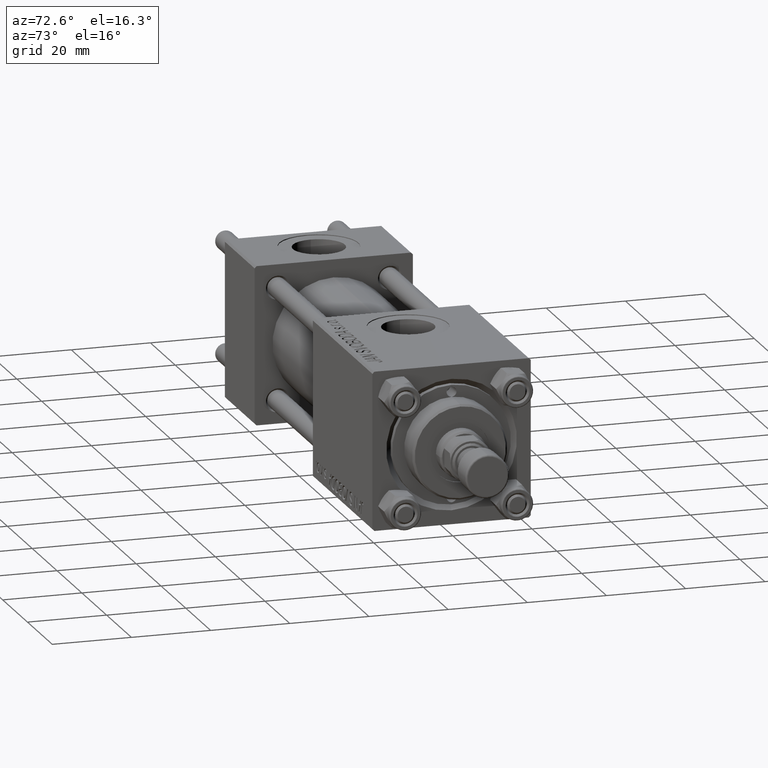
[diagram: clean part render]
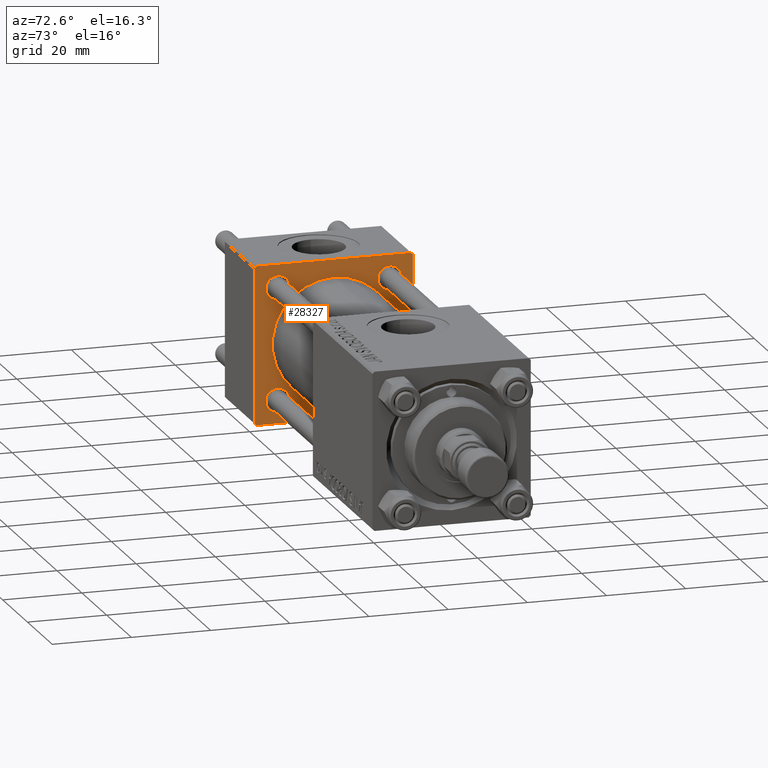
[diagram: same view with one face highlighted and labeled with its STEP entity id]
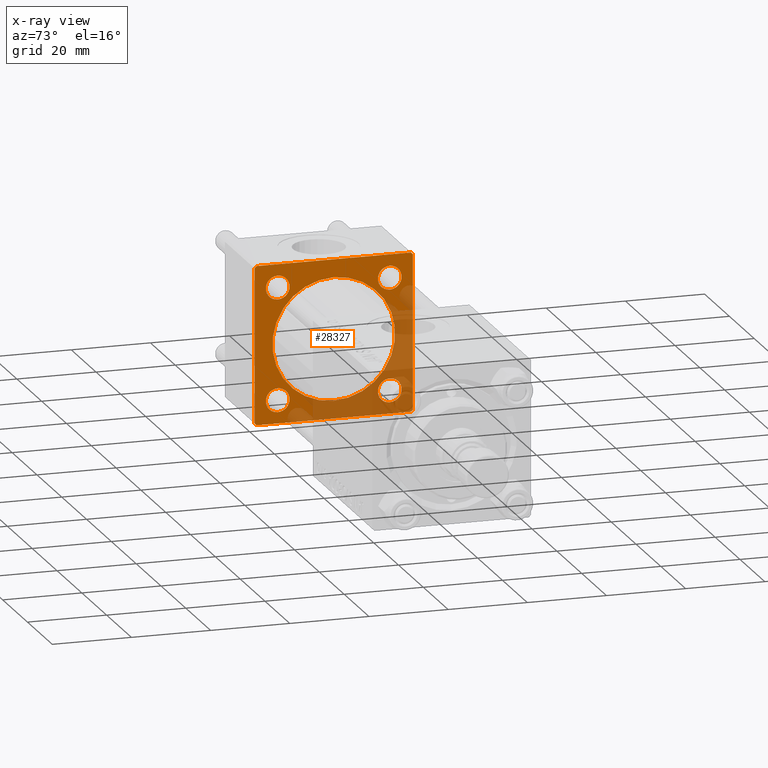
[diagram: x-ray of the same camera — body ghosted, the highlighted face saturated]
A machine part, auxiliary view. The second image highlights one B-rep face of the part: STEP entity #28327.
The next image is the same camera in x-ray: the body ghosted, the highlighted face saturated — about 37% of this face is hidden behind the body in this view.
In plain terms, the highlighted planar face has unit normal (-1, 0, 0).
Its self-contained STEP definition (entity closure, byte-faithful):
#502 = ORIENTED_EDGE ( 'NONE', *, *, #19121, .T. ) ;
#857 = AXIS2_PLACEMENT_3D ( 'NONE', #31133, #23736, #34715 ) ;
#1470 = EDGE_LOOP ( 'NONE', ( #45643, #43378 ) ) ;
#1953 = DIRECTION ( 'NONE',  ( 0.000000000000000000, 0.000000000000000000, 1.000000000000000000 ) ) ;
#2620 = CARTESIAN_POINT ( 'NONE',  ( 24.00000000000000000, 20.00000000000000000, -19.50000000000002132 ) ) ;
#2729 = AXIS2_PLACEMENT_3D ( 'NONE', #49219, #3333, #29299 ) ;
#3080 = CARTESIAN_POINT ( 'NONE',  ( 24.00000000000000000, 14.14999999999999858, 14.15000000000000036 ) ) ;
#3100 = VERTEX_POINT ( 'NONE', #43044 ) ;
#3333 = DIRECTION ( 'NONE',  ( -1.000000000000000000, -0.000000000000000000, -0.000000000000000000 ) ) ;
#3991 = CARTESIAN_POINT ( 'NONE',  ( 24.00000000000000000, -20.00000000000000355, 19.49999999999998224 ) ) ;
#4028 = EDGE_CURVE ( 'NONE', #40563, #18479, #42362, .T. ) ;
#4065 = DIRECTION ( 'NONE',  ( -1.000000000000000000, -0.000000000000000000, -0.000000000000000000 ) ) ;
#4087 = VERTEX_POINT ( 'NONE', #12541 ) ;
#4515 = VECTOR ( 'NONE', #27469, 1000.000000000000000 ) ;
#5428 = VERTEX_POINT ( 'NONE', #28054 ) ;
#5526 = DIRECTION ( 'NONE',  ( 1.000000000000000000, 0.000000000000000000, 0.000000000000000000 ) ) ;
#5580 = EDGE_CURVE ( 'NONE', #18479, #40563, #30181, .T. ) ;
#5653 = DIRECTION ( 'NONE',  ( 0.000000000000000000, 0.000000000000000000, 1.000000000000000000 ) ) ;
#5890 = DIRECTION ( 'NONE',  ( 0.000000000000000000, -1.000000000000000000, 1.734723475976807094E-16 ) ) ;
#6165 = DIRECTION ( 'NONE',  ( -1.000000000000000000, -0.000000000000000000, -0.000000000000000000 ) ) ;
#6921 = ORIENTED_EDGE ( 'NONE', *, *, #46995, .F. ) ;
#6930 = ORIENTED_EDGE ( 'NONE', *, *, #49336, .T. ) ;
#8003 = VECTOR ( 'NONE', #27816, 1000.000000000000000 ) ;
#8061 = DIRECTION ( 'NONE',  ( 0.000000000000000000, 0.000000000000000000, 1.000000000000000000 ) ) ;
#8204 = AXIS2_PLACEMENT_3D ( 'NONE', #3080, #4065, #49717 ) ;
#8883 = VERTEX_POINT ( 'NONE', #36579 ) ;
#8896 = DIRECTION ( 'NONE',  ( 0.000000000000000000, 0.000000000000000000, 1.000000000000000000 ) ) ;
#9209 = VERTEX_POINT ( 'NONE', #35004 ) ;
#9233 = ORIENTED_EDGE ( 'NONE', *, *, #44082, .F. ) ;
#9475 = ORIENTED_EDGE ( 'NONE', *, *, #43292, .T. ) ;
#9632 = CARTESIAN_POINT ( 'NONE',  ( 24.00000000000000000, -20.00000000000000355, 19.99999999999998934 ) ) ;
#10531 = DIRECTION ( 'NONE',  ( 0.000000000000000000, 0.000000000000000000, 1.000000000000000000 ) ) ;
#10819 = FACE_BOUND ( 'NONE', #1470, .T. ) ;
#10962 = VERTEX_POINT ( 'NONE', #44784 ) ;
#11068 = PLANE ( 'NONE',  #14467 ) ;
#11248 = VERTEX_POINT ( 'NONE', #17192 ) ;
#11614 = CIRCLE ( 'NONE', #28664, 3.000000000000000888 ) ;
#11702 = ORIENTED_EDGE ( 'NONE', *, *, #44296, .T. ) ;
#11891 = CARTESIAN_POINT ( 'NONE',  ( 24.00000000000000000, 14.14999999999999858, -14.15000000000000036 ) ) ;
#12286 = CARTESIAN_POINT ( 'NONE',  ( 24.00000000000000000, -19.50000000000000711, -20.00000000000000000 ) ) ;
#12541 = CARTESIAN_POINT ( 'NONE',  ( 24.00000000000000000, 20.00000000000000000, 19.49999999999999289 ) ) ;
#12916 = CARTESIAN_POINT ( 'NONE',  ( 24.00000000000000000, 0.000000000000000000, 0.000000000000000000 ) ) ;
#12919 = CARTESIAN_POINT ( 'NONE',  ( 24.00000000000000000, 14.14999999999999858, -11.15000000000002700 ) ) ;
#12941 = DIRECTION ( 'NONE',  ( 0.000000000000000000, 0.000000000000000000, 1.000000000000000000 ) ) ;
#13171 = VERTEX_POINT ( 'NONE', #28675 ) ;
#13661 = EDGE_CURVE ( 'NONE', #13171, #41495, #46664, .T. ) ;
#13871 = CARTESIAN_POINT ( 'NONE',  ( 24.00000000000000000, 19.50000000000000000, 20.00000000000000000 ) ) ;
#14467 = AXIS2_PLACEMENT_3D ( 'NONE', #41892, #18196, #29915 ) ;
#15086 = CARTESIAN_POINT ( 'NONE',  ( 24.00000000000000000, 0.000000000000000000, 0.000000000000000000 ) ) ;
#15722 = AXIS2_PLACEMENT_3D ( 'NONE', #20307, #28466, #20812 ) ;
#16518 = ORIENTED_EDGE ( 'NONE', *, *, #18733, .T. ) ;
#17004 = CARTESIAN_POINT ( 'NONE',  ( 24.00000000000000000, -14.14999999999999503, 14.15000000000000391 ) ) ;
#17192 = CARTESIAN_POINT ( 'NONE',  ( 24.00000000000000000, -19.50000000000000711, -20.00000000000000000 ) ) ;
#17245 = CARTESIAN_POINT ( 'NONE',  ( 24.00000000000000000, 19.50000000000000711, -20.00000000000000711 ) ) ;
#17522 = LINE ( 'NONE', #9632, #50095 ) ;
#18196 = DIRECTION ( 'NONE',  ( -1.000000000000000000, 0.000000000000000000, -0.000000000000000000 ) ) ;
#18479 = VERTEX_POINT ( 'NONE', #47914 ) ;
#18733 = EDGE_CURVE ( 'NONE', #36274, #28400, #22220, .T. ) ;
#18947 = EDGE_CURVE ( 'NONE', #30636, #8883, #17522, .T. ) ;
#19121 = EDGE_CURVE ( 'NONE', #41495, #13171, #28093, .T. ) ;
#19543 = EDGE_LOOP ( 'NONE', ( #30747, #6930 ) ) ;
#19771 = DIRECTION ( 'NONE',  ( -1.000000000000000000, -0.000000000000000000, -0.000000000000000000 ) ) ;
#20073 = VECTOR ( 'NONE', #34138, 1000.000000000000000 ) ;
#20307 = CARTESIAN_POINT ( 'NONE',  ( 24.00000000000000000, -14.14999999999999503, 14.15000000000000391 ) ) ;
#20812 = DIRECTION ( 'NONE',  ( 0.000000000000000000, 0.000000000000000000, 1.000000000000000000 ) ) ;
#21084 = CARTESIAN_POINT ( 'NONE',  ( 24.00000000000000000, -14.14999999999999503, -14.15000000000000391 ) ) ;
#21680 = CARTESIAN_POINT ( 'NONE',  ( 24.00000000000000000, 20.00000000000000000, -20.00000000000000711 ) ) ;
#21943 = AXIS2_PLACEMENT_3D ( 'NONE', #15086, #34691, #10531 ) ;
#22220 = LINE ( 'NONE', #2620, #4515 ) ;
#22367 = ORIENTED_EDGE ( 'NONE', *, *, #37669, .F. ) ;
#22756 = ORIENTED_EDGE ( 'NONE', *, *, #30852, .T. ) ;
#22775 = AXIS2_PLACEMENT_3D ( 'NONE', #17004, #32305, #12941 ) ;
#22897 = CARTESIAN_POINT ( 'NONE',  ( 24.00000000000000000, 20.00000000000000000, 20.00000000000000000 ) ) ;
#23736 = DIRECTION ( 'NONE',  ( -1.000000000000000000, -0.000000000000000000, -0.000000000000000000 ) ) ;
#24291 = EDGE_LOOP ( 'NONE', ( #9233, #22367 ) ) ;
#25048 = EDGE_LOOP ( 'NONE', ( #11702, #31888 ) ) ;
#25399 = CARTESIAN_POINT ( 'NONE',  ( 24.00000000000000000, -19.49999999999999289, 19.99999999999998934 ) ) ;
#25576 = FACE_BOUND ( 'NONE', #25048, .T. ) ;
#25970 = EDGE_CURVE ( 'NONE', #3100, #38338, #35820, .T. ) ;
#26016 = CARTESIAN_POINT ( 'NONE',  ( 24.00000000000000000, -14.14999999999999503, -14.15000000000000391 ) ) ;
#26337 = FACE_BOUND ( 'NONE', #24291, .T. ) ;
#26824 = CARTESIAN_POINT ( 'NONE',  ( 24.00000000000000000, 20.00000000000000000, -19.50000000000002132 ) ) ;
#27469 = DIRECTION ( 'NONE',  ( -0.000000000000000000, 0.7071067811865524577, 0.7071067811865426878 ) ) ;
#27816 = DIRECTION ( 'NONE',  ( 0.000000000000000000, 0.7071067811865401342, -0.7071067811865549002 ) ) ;
#28054 = CARTESIAN_POINT ( 'NONE',  ( 24.00000000000000000, 1.898202538678397557E-15, -15.50000000000000000 ) ) ;
#28093 = CIRCLE ( 'NONE', #29742, 2.999999999999976463 ) ;
#28327 = ADVANCED_FACE ( 'NONE', ( #25576, #37308, #49808, #10819, #26337, #49051 ), #11068, .F. ) ;
#28400 = VERTEX_POINT ( 'NONE', #26824 ) ;
#28466 = DIRECTION ( 'NONE',  ( -1.000000000000000000, -0.000000000000000000, -0.000000000000000000 ) ) ;
#28664 = AXIS2_PLACEMENT_3D ( 'NONE', #26016, #6165, #5653 ) ;
#28675 = CARTESIAN_POINT ( 'NONE',  ( 24.00000000000000000, 14.14999999999999858, -17.14999999999997726 ) ) ;
#29119 = EDGE_LOOP ( 'NONE', ( #37994, #16518, #6921, #35408, #30078, #9475, #50294, #22756 ) ) ;
#29155 = DIRECTION ( 'NONE',  ( 0.000000000000000000, -0.7071067811865425767, 0.7071067811865525687 ) ) ;
#29299 = DIRECTION ( 'NONE',  ( 0.000000000000000000, 0.000000000000000000, 1.000000000000000000 ) ) ;
#29742 = AXIS2_PLACEMENT_3D ( 'NONE', #11891, #19771, #8061 ) ;
#29915 = DIRECTION ( 'NONE',  ( -0.000000000000000000, 0.000000000000000000, 1.000000000000000000 ) ) ;
#30078 = ORIENTED_EDGE ( 'NONE', *, *, #25970, .T. ) ;
#30181 = CIRCLE ( 'NONE', #8204, 2.999999999999976463 ) ;
#30279 = VECTOR ( 'NONE', #42955, 1000.000000000000114 ) ;
#30636 = VERTEX_POINT ( 'NONE', #46701 ) ;
#30747 = ORIENTED_EDGE ( 'NONE', *, *, #36960, .T. ) ;
#30852 = EDGE_CURVE ( 'NONE', #8883, #11248, #36226, .T. ) ;
#31099 = AXIS2_PLACEMENT_3D ( 'NONE', #12916, #5526, #1953 ) ;
#31133 = CARTESIAN_POINT ( 'NONE',  ( 24.00000000000000000, 14.14999999999999858, 14.15000000000000036 ) ) ;
#31810 = ORIENTED_EDGE ( 'NONE', *, *, #13661, .T. ) ;
#31888 = ORIENTED_EDGE ( 'NONE', *, *, #40479, .T. ) ;
#32305 = DIRECTION ( 'NONE',  ( -1.000000000000000000, -0.000000000000000000, -0.000000000000000000 ) ) ;
#33222 = EDGE_CURVE ( 'NONE', #36274, #11248, #49234, .T. ) ;
#33579 = DIRECTION ( 'NONE',  ( 0.000000000000000000, 8.673617379884036705E-17, -1.000000000000000000 ) ) ;
#34138 = DIRECTION ( 'NONE',  ( 0.000000000000000000, -1.000000000000000000, -2.602085213965210149E-16 ) ) ;
#34691 = DIRECTION ( 'NONE',  ( 1.000000000000000000, 0.000000000000000000, 0.000000000000000000 ) ) ;
#34715 = DIRECTION ( 'NONE',  ( 0.000000000000000000, 0.000000000000000000, 1.000000000000000000 ) ) ;
#35004 = CARTESIAN_POINT ( 'NONE',  ( 24.00000000000000000, 0.000000000000000000, 15.50000000000000000 ) ) ;
#35303 = VERTEX_POINT ( 'NONE', #42449 ) ;
#35408 = ORIENTED_EDGE ( 'NONE', *, *, #46078, .T. ) ;
#35735 = EDGE_LOOP ( 'NONE', ( #31810, #502 ) ) ;
#35758 = CIRCLE ( 'NONE', #21943, 15.50000000000000000 ) ;
#35820 = LINE ( 'NONE', #22897, #20073 ) ;
#35908 = AXIS2_PLACEMENT_3D ( 'NONE', #21084, #44297, #8896 ) ;
#36226 = LINE ( 'NONE', #12286, #8003 ) ;
#36274 = VERTEX_POINT ( 'NONE', #17245 ) ;
#36579 = CARTESIAN_POINT ( 'NONE',  ( 24.00000000000000000, -20.00000000000000000, -19.49999999999999645 ) ) ;
#36960 = EDGE_CURVE ( 'NONE', #10962, #37007, #45580, .T. ) ;
#37007 = VERTEX_POINT ( 'NONE', #44533 ) ;
#37308 = FACE_BOUND ( 'NONE', #35735, .T. ) ;
#37389 = VERTEX_POINT ( 'NONE', #45742 ) ;
#37669 = EDGE_CURVE ( 'NONE', #5428, #9209, #35758, .T. ) ;
#37712 = VECTOR ( 'NONE', #29155, 999.9999999999998863 ) ;
#37994 = ORIENTED_EDGE ( 'NONE', *, *, #33222, .F. ) ;
#38338 = VERTEX_POINT ( 'NONE', #25399 ) ;
#38582 = DIRECTION ( 'NONE',  ( 0.000000000000000000, 0.000000000000000000, -1.000000000000000000 ) ) ;
#40046 = VECTOR ( 'NONE', #38582, 1000.000000000000000 ) ;
#40479 = EDGE_CURVE ( 'NONE', #35303, #37389, #48962, .T. ) ;
#40563 = VERTEX_POINT ( 'NONE', #43159 ) ;
#40642 = VECTOR ( 'NONE', #5890, 1000.000000000000000 ) ;
#41495 = VERTEX_POINT ( 'NONE', #12919 ) ;
#41892 = CARTESIAN_POINT ( 'NONE',  ( 24.00000000000000000, 0.000000000000000000, 0.000000000000000000 ) ) ;
#41927 = CARTESIAN_POINT ( 'NONE',  ( 24.00000000000000000, 20.00000000000000000, 20.00000000000000000 ) ) ;
#42362 = CIRCLE ( 'NONE', #857, 2.999999999999976463 ) ;
#42409 = LINE ( 'NONE', #41927, #40046 ) ;
#42449 = CARTESIAN_POINT ( 'NONE',  ( 24.00000000000000000, -14.14999999999999503, -11.15000000000000391 ) ) ;
#42955 = DIRECTION ( 'NONE',  ( -0.000000000000000000, -0.7071067811865500152, -0.7071067811865451302 ) ) ;
#43044 = CARTESIAN_POINT ( 'NONE',  ( 24.00000000000000000, 19.50000000000000000, 20.00000000000000000 ) ) ;
#43159 = CARTESIAN_POINT ( 'NONE',  ( 24.00000000000000000, 14.14999999999999858, 11.15000000000002700 ) ) ;
#43292 = EDGE_CURVE ( 'NONE', #38338, #30636, #49891, .T. ) ;
#43324 = CIRCLE ( 'NONE', #31099, 15.50000000000000000 ) ;
#43378 = ORIENTED_EDGE ( 'NONE', *, *, #5580, .T. ) ;
#44082 = EDGE_CURVE ( 'NONE', #9209, #5428, #43324, .T. ) ;
#44296 = EDGE_CURVE ( 'NONE', #37389, #35303, #11614, .T. ) ;
#44297 = DIRECTION ( 'NONE',  ( -1.000000000000000000, -0.000000000000000000, -0.000000000000000000 ) ) ;
#44533 = CARTESIAN_POINT ( 'NONE',  ( 24.00000000000000000, -14.14999999999999503, 17.15000000000000568 ) ) ;
#44784 = CARTESIAN_POINT ( 'NONE',  ( 24.00000000000000000, -14.14999999999999503, 11.15000000000000391 ) ) ;
#45580 = CIRCLE ( 'NONE', #22775, 3.000000000000000888 ) ;
#45643 = ORIENTED_EDGE ( 'NONE', *, *, #4028, .T. ) ;
#45742 = CARTESIAN_POINT ( 'NONE',  ( 24.00000000000000000, -14.14999999999999503, -17.15000000000000568 ) ) ;
#45865 = CIRCLE ( 'NONE', #15722, 3.000000000000000888 ) ;
#46078 = EDGE_CURVE ( 'NONE', #4087, #3100, #48297, .T. ) ;
#46664 = CIRCLE ( 'NONE', #2729, 2.999999999999976463 ) ;
#46701 = CARTESIAN_POINT ( 'NONE',  ( 24.00000000000000000, -20.00000000000000355, 19.49999999999998224 ) ) ;
#46995 = EDGE_CURVE ( 'NONE', #4087, #28400, #42409, .T. ) ;
#47914 = CARTESIAN_POINT ( 'NONE',  ( 24.00000000000000000, 14.14999999999999858, 17.14999999999997726 ) ) ;
#48297 = LINE ( 'NONE', #13871, #37712 ) ;
#48962 = CIRCLE ( 'NONE', #35908, 3.000000000000000888 ) ;
#49051 = FACE_OUTER_BOUND ( 'NONE', #29119, .T. ) ;
#49219 = CARTESIAN_POINT ( 'NONE',  ( 24.00000000000000000, 14.14999999999999858, -14.15000000000000036 ) ) ;
#49234 = LINE ( 'NONE', #21680, #40642 ) ;
#49336 = EDGE_CURVE ( 'NONE', #37007, #10962, #45865, .T. ) ;
#49717 = DIRECTION ( 'NONE',  ( 0.000000000000000000, 0.000000000000000000, 1.000000000000000000 ) ) ;
#49808 = FACE_BOUND ( 'NONE', #19543, .T. ) ;
#49891 = LINE ( 'NONE', #3991, #30279 ) ;
#50095 = VECTOR ( 'NONE', #33579, 1000.000000000000000 ) ;
#50294 = ORIENTED_EDGE ( 'NONE', *, *, #18947, .T. ) ;